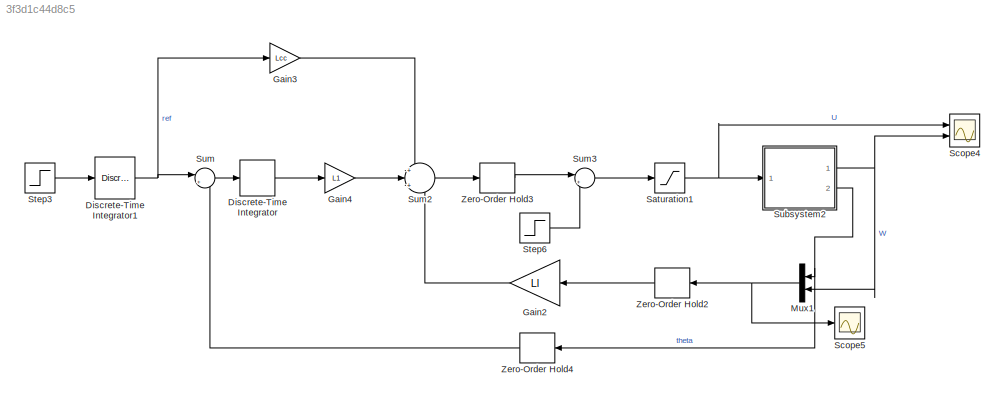
MODEL slx_3f3d1c44d8c5
KIND model
CONFIG AbsTol = auto
CONFIG EnableMultiTasking = on
CONFIG FixedStep = auto
CONFIG MaxStep = auto
CONFIG MinStep = auto
CONFIG PostLoadFcn = try, \ncodertarget.arduinobase.registry.setBaudRate(gcs,115200)\ndisp('baud rate set to 115200 for external mode hardware serial')\nbaudrate='set_to_115200'\ncatch\ndisp('baud rate setting not needed in this version')\nend
CONFIG RelTol = 1e-3
CONFIG SampleTimeConstraint = Unconstrained
CONFIG SolverName = ode45
CONFIG StartTime = 0.0
CONFIG StopTime = 10.0
BLOCK [DiscreteIntegrator] Discrete-Time Integrator
  ICPrevOutput = DiscIntNeverNeededParam
  ICPrevScaledInput = DiscIntNeverNeededParam
  InitialConditionSetting = Auto
  Ports = [1, 1]
  SampleTime = h
BLOCK [DiscreteIntegrator] Discrete-Time Integrator1
  ICPrevOutput = DiscIntNeverNeededParam
  ICPrevScaledInput = DiscIntNeverNeededParam
  InitialConditionSetting = Auto
  LimitOutput = on
  LowerSaturationLimit = -70
  Ports = [1, 1]
  SampleTime = h
  UpperSaturationLimit = 70
BLOCK [Gain] Gain2
  Gain = Ll
  Multiplication = Matrix(K*u) (u vector)
  NameLocation = top
BLOCK [Gain] Gain3
  Gain = Lcc
BLOCK [Gain] Gain4
  Gain = L1
BLOCK [Mux] Mux1
  DisplayOption = bar
  Inputs = 2
  NameLocation = top
  Ports = [2, 1]
BLOCK [Saturate] Saturation1
  LowerLimit = -4.8
  UpperLimit = 4.8
BLOCK [Scope] Scope4
  Floating = off
  NumInputPorts = 2
  Ports = [2]
  ScopeSpecificationString = Simulink.scopes.TimeScopeBlockCfg('CurrentConfiguration', extmgr.ConfigurationSet(extmgr.Configuration('Core','General UI',true),extmgr.Configuration('Core','Source UI',true),extmgr.Configuration('Sources','WiredSimulink',true,'DataLoggingVariableName','ScopeData4'),extmgr.Configuration('Visuals','Time Domain',true,'SerializedDisplays',{struct('MinYLimReal','-73.54807','MaxYLimReal','10.89341','YL...<+1401ch>
BLOCK [Scope] Scope5
  Floating = off
  NumInputPorts = 1
  Ports = [1]
  ScopeSpecificationString = Simulink.scopes.TimeScopeBlockCfg('CurrentConfiguration', extmgr.ConfigurationSet(extmgr.Configuration('Core','General UI',true,'FigureColor',[1 1 1]),extmgr.Configuration('Core','Source UI',true),extmgr.Configuration('Sources','WiredSimulink',true),extmgr.Configuration('Visuals','Time Domain',true,'SerializedDisplays',{struct('MinYLimReal','-73.86498','MaxYLimReal','13.74564','YLabelReal','','Min...<+1571ch>
BLOCK [Step] Step3
  After = 60
  SampleTime = 0
BLOCK [Step] Step6
  After = 2
  SampleTime = 0
  Time = 5
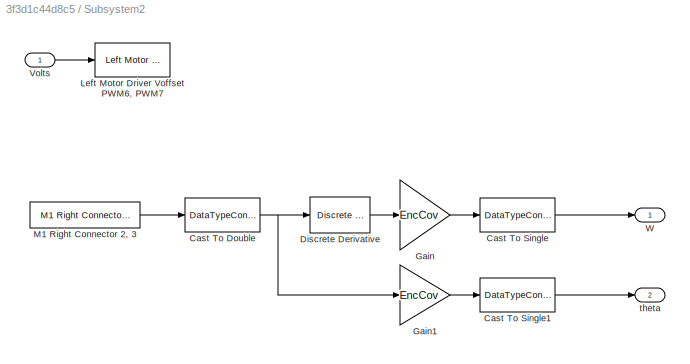
BLOCK [SubSystem] Subsystem2
  Ports = [1, 2]
  RequestExecContextInheritance = off
BLOCK [DataTypeConversion] Subsystem2/Cast To Double
  OutDataTypeStr = double
  RndMeth = Floor
  SaturateOnIntegerOverflow = off
BLOCK [DataTypeConversion] Subsystem2/Cast To Single
  OutDataTypeStr = single
  RndMeth = Floor
  SaturateOnIntegerOverflow = off
BLOCK [DataTypeConversion] Subsystem2/Cast To Single1
  OutDataTypeStr = single
  RndMeth = Floor
  SaturateOnIntegerOverflow = off
BLOCK [Reference] Subsystem2/Discrete Derivative  REF=simulink/Discrete/Discrete Derivative
  Ports = [1, 1]
  SourceBlock = simulink/Discrete/Discrete Derivative
  SourceProductBaseCode = SL
  SourceType = Discrete Derivative
BLOCK [Gain] Subsystem2/Gain
  Gain = EncCov
BLOCK [Gain] Subsystem2/Gain1
  Gain = EncCov
BLOCK [Reference] Subsystem2/Left Motor Driver Voffset PWM6, PWM7  REF=MinSegLibrary_M2V5/Left Motor Driver
Voffset PWM6, PWM7
  Ports = [1]
  SourceBlock = MinSegLibrary_M2V5/Left Motor Driver\nVoffset PWM6, PWM7
  SourceProductName = Rensselaer Arduino Support Package
BLOCK [Reference] Subsystem2/M1 Right Connector 2, 3  REF=MinSegLibrary_M2V5/M1 Right Connector 2, 3
  Ports = [0, 1]
  SourceBlock = MinSegLibrary_M2V5/M1 Right Connector 2, 3
  SourceProductName = Rensselaer Arduino Support Package
  SourceType = Encoder_arduino
BLOCK [Inport] Subsystem2/Volts
BLOCK [Outport] Subsystem2/W
BLOCK [Outport] Subsystem2/theta
  Port = 2
BLOCK [Sum] Sum
  Inputs = |+-
  Ports = [2, 1]
BLOCK [Sum] Sum2
  Inputs = +|+|-
  Ports = [3, 1]
BLOCK [Sum] Sum3
  Inputs = |+-
  Ports = [2, 1]
BLOCK [ZeroOrderHold] Zero-Order Hold2
  NameLocation = top
  SampleTime = h
BLOCK [ZeroOrderHold] Zero-Order Hold3
  SampleTime = h
BLOCK [ZeroOrderHold] Zero-Order Hold4
  NameLocation = top
  SampleTime = h
NET Discrete-Time Integrator1:1 -> Gain3:1, Sum:1
LINE Discrete-Time Integrator:1 -> Gain4:1
LINE Gain2:1 -> Sum2:3
LINE Gain3:1 -> Sum2:1
LINE Gain4:1 -> Sum2:2
NET Mux1:1 -> Scope5:1, Zero-Order Hold2:1
NET Saturation1:1 -> Scope4:1, Subsystem2:1
LINE Step3:1 -> Discrete-Time Integrator1:1
LINE Step6:1 -> Sum3:2
NET Subsystem2/Cast To Double:1 -> Subsystem2/Discrete Derivative:1, Subsystem2/Gain1:1
LINE Subsystem2/Cast To Single1:1 -> Subsystem2/theta:1
LINE Subsystem2/Cast To Single:1 -> Subsystem2/W:1
LINE Subsystem2/Discrete Derivative:1 -> Subsystem2/Gain:1
LINE Subsystem2/Gain1:1 -> Subsystem2/Cast To Single1:1
LINE Subsystem2/Gain:1 -> Subsystem2/Cast To Single:1
LINE Subsystem2/M1 Right Connector 2, 3:1 -> Subsystem2/Cast To Double:1
LINE Subsystem2/Volts:1 -> Subsystem2/Left Motor Driver Voffset PWM6, PWM7:1
NET Subsystem2:1 -> Mux1:2, Scope4:2
NET Subsystem2:2 -> Mux1:1, Zero-Order Hold4:1
LINE Sum2:1 -> Zero-Order Hold3:1
LINE Sum3:1 -> Saturation1:1
LINE Sum:1 -> Discrete-Time Integrator:1
LINE Zero-Order Hold2:1 -> Gain2:1
LINE Zero-Order Hold3:1 -> Sum3:1
LINE Zero-Order Hold4:1 -> Sum:2
note: NET lines group one-source signal fan-out (src -> all destinations, sorted); 1:1 wires keep LINE
